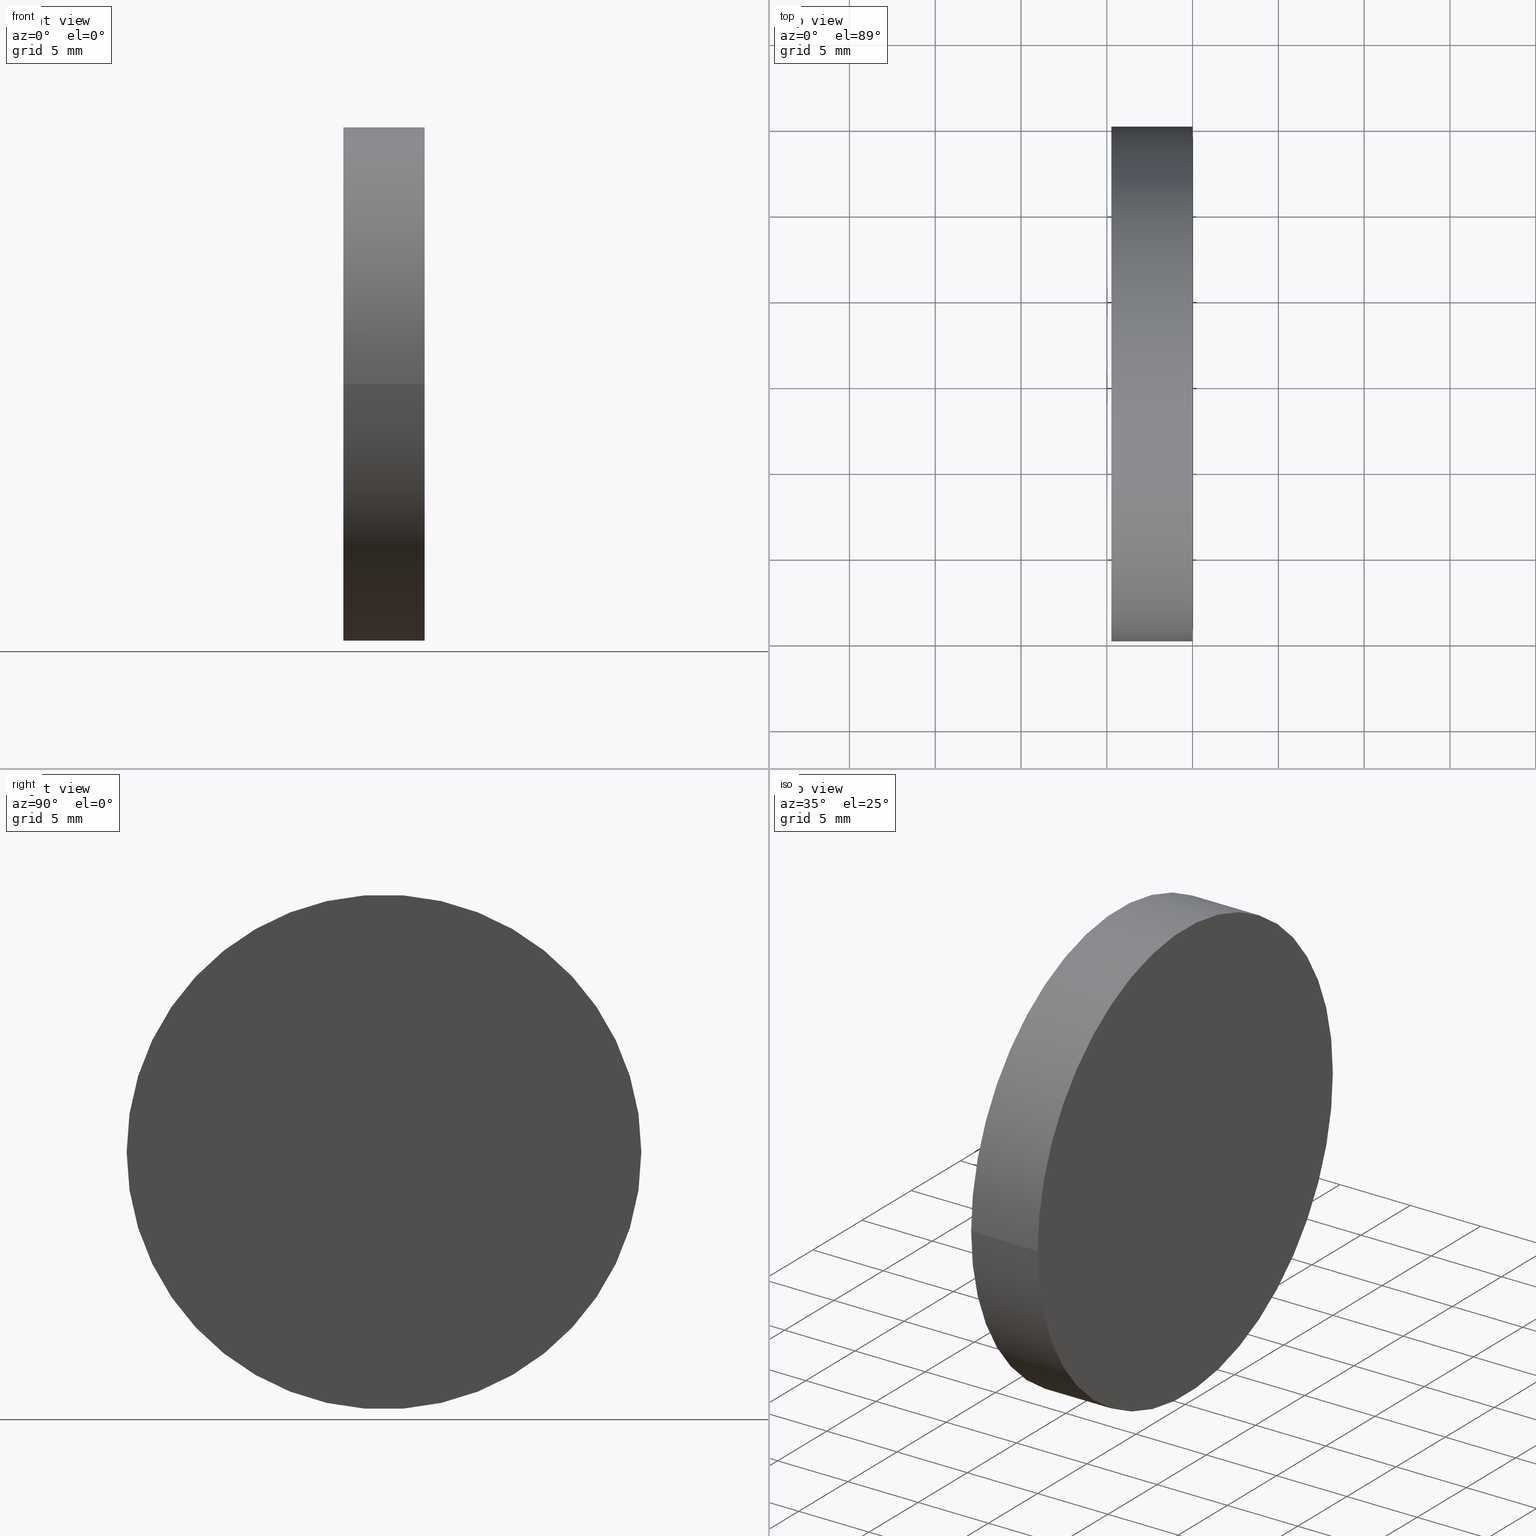
[diagram: canonical four-view strip — front | top / right | iso, engineering-drawing reading convention]
A machine part, canonical four-view strip (front | top / right | iso — engineering-drawing reading convention). The complete STEP part file that produces these views, byte-faithful:
ISO-10303-21;
HEADER;
FILE_DESCRIPTION (( 'STEP AP203' ),
    '1' );
FILE_NAME ('120356.STEP',
    '2024-05-10T06:45:50',
    ( '' ),
    ( '' ),
    'SwSTEP 2.0',
    'SolidWorks 2020',
    '' );
FILE_SCHEMA (( 'CONFIG_CONTROL_DESIGN' ));
ENDSEC;

DATA;
#1 = DIRECTION ( 'NONE',  ( -1.224646799147353207E-16, 1.000000000000000000, 0.000000000000000000 ) ) ;
#2 = APPROVAL_ROLE ( '' ) ;
#3 = TOROIDAL_SURFACE ( 'NONE', #62, -0.01138314681476834331, 51.63999999999999346 ) ;
#4 = COORDINATED_UNIVERSAL_TIME_OFFSET ( 8, 0, .AHEAD. ) ;
#5 = EDGE_CURVE ( 'NONE', #157, #108, #38, .T. ) ;
#6 = PERSON_AND_ORGANIZATION ( #48, #22 ) ;
#7 = APPLICATION_CONTEXT ( 'configuration controlled 3d designs of mechanical parts and assemblies' ) ;
#8 = VERTEX_POINT ( 'NONE', #63 ) ;
#9 = VERTEX_POINT ( 'NONE', #167 ) ;
#10 = LOCAL_TIME ( 14, 45, 50.00000000000000000, #101 ) ;
#11 = EDGE_CURVE ( 'NONE', #157, #9, #36, .T. ) ;
#12 = CARTESIAN_POINT ( 'NONE',  ( -4.729999999999999538, 15.00000000000000178, 0.000000000000000000 ) ) ;
#13 = CYLINDRICAL_SURFACE ( 'NONE', #94, 15.00000000000000000 ) ;
#14 = FACE_OUTER_BOUND ( 'NONE', #169, .T. ) ;
#15 = CC_DESIGN_APPROVAL ( #27, ( #166 ) ) ;
#16 = COORDINATED_UNIVERSAL_TIME_OFFSET ( 8, 0, .AHEAD. ) ;
#17 =( LENGTH_UNIT ( ) NAMED_UNIT ( * ) SI_UNIT ( .MILLI., .METRE. ) );
#18 = APPLICATION_PROTOCOL_DEFINITION ( 'international standard', 'config_control_design', 1994, #7 ) ;
#19 = DIRECTION ( 'NONE',  ( -1.224646799147353207E-16, 1.000000000000000000, 0.000000000000000000 ) ) ;
#20 = SHAPE_DEFINITION_REPRESENTATION ( #118, #119 ) ;
#21 = PERSON_AND_ORGANIZATION ( #48, #22 ) ;
#22 = ORGANIZATION ( 'δָ��', 'δָ��', '' ) ;
#23 = APPROVAL_DATE_TIME ( #103, #27 ) ;
#24 = EDGE_CURVE ( 'NONE', #108, #8, #43, .T. ) ;
#25 = VECTOR ( 'NONE', #41, 1000.000000000000000 ) ;
#26 = LINE ( 'NONE', #59, #130 ) ;
#27 = APPROVAL ( #37, 'δָ��' ) ;
#28 = DIRECTION ( 'NONE',  ( -1.156482317317871478E-16, 1.000000000000000000, 0.000000000000000000 ) ) ;
#29 = CARTESIAN_POINT ( 'NONE',  ( 0.000000000000000000, 0.000000000000000000, 0.000000000000000000 ) ) ;
#30 = ORIENTED_EDGE ( 'NONE', *, *, #5, .F. ) ;
#31 = CIRCLE ( 'NONE', #175, 15.00000000000000000 ) ;
#32 = APPROVAL_STATUS ( 'not_yet_approved' ) ;
#33 = CARTESIAN_POINT ( 'NONE',  ( 2.763896918518806728E-15, -15.00000000000000000, 1.836970198721029589E-15 ) ) ;
#34 = CC_DESIGN_DATE_AND_TIME_ASSIGNMENT ( #46, #82, ( #156 ) ) ;
#35 = DIRECTION ( 'NONE',  ( -1.224646799147353207E-16, 1.000000000000000000, 0.000000000000000000 ) ) ;
#36 = CIRCLE ( 'NONE', #70, 51.63999999999999346 ) ;
#37 = APPROVAL_STATUS ( 'not_yet_approved' ) ;
#38 = CIRCLE ( 'NONE', #149, 15.00000000000000000 ) ;
#39 = ORIENTED_EDGE ( 'NONE', *, *, #11, .F. ) ;
#40 = EDGE_CURVE ( 'NONE', #108, #157, #181, .T. ) ;
#41 = DIRECTION ( 'NONE',  ( 1.000000000000000000, 1.224646799147353454E-16, -0.000000000000000000 ) ) ;
#42 = CARTESIAN_POINT ( 'NONE',  ( -4.729999999999999538, -5.792579359966981895E-16, 0.000000000000000000 ) ) ;
#43 = LINE ( 'NONE', #91, #25 ) ;
#44 = EDGE_CURVE ( 'NONE', #157, #195, #26, .T. ) ;
#45 = DIRECTION ( 'NONE',  ( -1.224646799147353454E-16, 1.000000000000000000, 0.000000000000000000 ) ) ;
#46 = DATE_AND_TIME ( #201, #153 ) ;
#47 = AXIS2_PLACEMENT_3D ( 'NONE', #133, #57, #121 ) ;
#48 = PERSON ( 'δָ��', 'δָ��', 'δָ��', ('δָ��'), ('δָ��'), ('δָ��') ) ;
#49 = APPROVAL_ROLE ( '' ) ;
#50 = CARTESIAN_POINT ( 'NONE',  ( 0.000000000000000000, 0.000000000000000000, 0.000000000000000000 ) ) ;
#51 = APPROVAL_PERSON_ORGANIZATION ( #125, #83, #49 ) ;
#52 = APPROVAL_DATE_TIME ( #160, #143 ) ;
#53 = MANIFOLD_SOLID_BREP ( '��ת1', #180 ) ;
#54 = UNCERTAINTY_MEASURE_WITH_UNIT (LENGTH_MEASURE( 1.000000000000000082E-05 ), #17, 'distance_accuracy_value', 'NONE');
#55 = CALENDAR_DATE ( 2024, 10, 5 ) ;
#56 = CALENDAR_DATE ( 2024, 10, 5 ) ;
#57 = DIRECTION ( 'NONE',  ( 1.000000000000000000, 1.224646799147353454E-16, -0.000000000000000000 ) ) ;
#58 = AXIS2_PLACEMENT_3D ( 'NONE', #188, #127, #35 ) ;
#59 = CARTESIAN_POINT ( 'NONE',  ( 1.836970198721029983E-15, -15.00000000000000000, 1.836970198721029589E-15 ) ) ;
#60 = DIRECTION ( 'NONE',  ( -1.000000000000000000, 0.000000000000000000, 0.000000000000000000 ) ) ;
#61 = CARTESIAN_POINT ( 'NONE',  ( -54.13999874539084090, 0.01138314681476171146, -1.394033431093043911E-18 ) ) ;
#62 = AXIS2_PLACEMENT_3D ( 'NONE', #95, #176, #45 ) ;
#63 = CARTESIAN_POINT ( 'NONE',  ( -9.100434789232534355E-16, 15.00000000000000000, 0.000000000000000000 ) ) ;
#64 = PERSON_AND_ORGANIZATION_ROLE ( 'design_owner' ) ;
#65 = CARTESIAN_POINT ( 'NONE',  ( 0.000000000000000000, 0.000000000000000000, 0.000000000000000000 ) ) ;
#66 = CC_DESIGN_PERSON_AND_ORGANIZATION_ASSIGNMENT ( #81, #64, ( #164 ) ) ;
#67 =( GEOMETRIC_REPRESENTATION_CONTEXT ( 3 ) GLOBAL_UNCERTAINTY_ASSIGNED_CONTEXT ( ( #54 ) ) GLOBAL_UNIT_ASSIGNED_CONTEXT ( ( #17, #80, #189 ) ) REPRESENTATION_CONTEXT ( 'NONE', 'WORKASPACE' ) );
#68 = DIRECTION ( 'NONE',  ( -1.224646799147353454E-16, 1.000000000000000000, 0.000000000000000000 ) ) ;
#69 = APPROVAL_ROLE ( '' ) ;
#70 = AXIS2_PLACEMENT_3D ( 'NONE', #61, #197, #194 ) ;
#71 = PERSON_AND_ORGANIZATION ( #48, #22 ) ;
#72 = CIRCLE ( 'NONE', #58, 15.00000000000000000 ) ;
#73 = AXIS2_PLACEMENT_3D ( 'NONE', #74, #137, #60 ) ;
#74 = CARTESIAN_POINT ( 'NONE',  ( -54.13999874539084090, -0.01138314681477497342, 0.000000000000000000 ) ) ;
#75 = EDGE_LOOP ( 'NONE', ( #39, #182, #138 ) ) ;
#76 = DIRECTION ( 'NONE',  ( -1.156482317317871478E-16, 1.000000000000000000, 0.000000000000000000 ) ) ;
#77 = APPROVAL_PERSON_ORGANIZATION ( #71, #27, #69 ) ;
#78 = DATE_AND_TIME ( #113, #187 ) ;
#79 = EDGE_CURVE ( 'NONE', #108, #9, #115, .T. ) ;
#80 =( NAMED_UNIT ( * ) PLANE_ANGLE_UNIT ( ) SI_UNIT ( $, .RADIAN. ) );
#81 = PERSON_AND_ORGANIZATION ( #48, #22 ) ;
#82 = DATE_TIME_ROLE ( 'creation_date' ) ;
#83 = APPROVAL ( #144, 'δָ��' ) ;
#84 = PERSON_AND_ORGANIZATION ( #48, #22 ) ;
#85 = LOCAL_TIME ( 14, 45, 50.00000000000000000, #4 ) ;
#86 = DESIGN_CONTEXT ( 'detailed design', #7, 'design' ) ;
#87 = AXIS2_PLACEMENT_3D ( 'NONE', #65, #96, #124 ) ;
#88 = ORIENTED_EDGE ( 'NONE', *, *, #24, .F. ) ;
#89 = ORIENTED_EDGE ( 'NONE', *, *, #179, .T. ) ;
#90 = CC_DESIGN_APPROVAL ( #143, ( #162 ) ) ;
#91 = CARTESIAN_POINT ( 'NONE',  ( -1.836970198721029983E-15, 15.00000000000000000, 0.000000000000000000 ) ) ;
#92 = CC_DESIGN_PERSON_AND_ORGANIZATION_ASSIGNMENT ( #6, #161, ( #162 ) ) ;
#93 = EDGE_LOOP ( 'NONE', ( #30, #152, #172 ) ) ;
#94 = AXIS2_PLACEMENT_3D ( 'NONE', #29, #139, #200 ) ;
#95 = CARTESIAN_POINT ( 'NONE',  ( -54.13999874539084090, -6.630573911106663054E-15, 0.000000000000000000 ) ) ;
#96 = DIRECTION ( 'NONE',  ( 0.000000000000000000, 0.000000000000000000, 1.000000000000000000 ) ) ;
#97 = MECHANICAL_CONTEXT ( 'NONE', #170, 'mechanical' ) ;
#98 = AXIS2_PLACEMENT_3D ( 'NONE', #171, #155, #28 ) ;
#99 = ADVANCED_FACE ( 'NONE', ( #107 ), #136, .F. ) ;
#100 = APPLICATION_PROTOCOL_DEFINITION ( 'international standard', 'config_control_design', 1994, #170 ) ;
#101 = COORDINATED_UNIVERSAL_TIME_OFFSET ( 8, 0, .AHEAD. ) ;
#102 = CC_DESIGN_PERSON_AND_ORGANIZATION_ASSIGNMENT ( #84, #146, ( #166 ) ) ;
#103 = DATE_AND_TIME ( #56, #105 ) ;
#104 = APPROVAL_PERSON_ORGANIZATION ( #173, #143, #2 ) ;
#105 = LOCAL_TIME ( 14, 45, 50.00000000000000000, #129 ) ;
#106 = EDGE_LOOP ( 'NONE', ( #199, #120, #134, #88 ) ) ;
#107 = FACE_OUTER_BOUND ( 'NONE', #93, .T. ) ;
#108 = VERTEX_POINT ( 'NONE', #12 ) ;
#109 = ORIENTED_EDGE ( 'NONE', *, *, #24, .T. ) ;
#110 = FACE_OUTER_BOUND ( 'NONE', #183, .T. ) ;
#111 = AXIS2_PLACEMENT_3D ( 'NONE', #140, #185, #68 ) ;
#112 = DIRECTION ( 'NONE',  ( 1.000000000000000000, 1.224646799147353454E-16, -0.000000000000000000 ) ) ;
#113 = CALENDAR_DATE ( 2024, 10, 5 ) ;
#114 = FACE_OUTER_BOUND ( 'NONE', #75, .T. ) ;
#115 = CIRCLE ( 'NONE', #73, 51.63999999999999346 ) ;
#116 = DATE_TIME_ROLE ( 'classification_date' ) ;
#117 = ADVANCED_FACE ( 'NONE', ( #122 ), #13, .T. ) ;
#118 = PRODUCT_DEFINITION_SHAPE ( 'NONE', 'NONE',  #156 ) ;
#119 = ADVANCED_BREP_SHAPE_REPRESENTATION ( '120356', ( #53, #87 ), #67 ) ;
#120 = ORIENTED_EDGE ( 'NONE', *, *, #44, .T. ) ;
#121 = DIRECTION ( 'NONE',  ( -1.224646799147353454E-16, 1.000000000000000000, 0.000000000000000000 ) ) ;
#122 = FACE_OUTER_BOUND ( 'NONE', #106, .T. ) ;
#123 = DIRECTION ( 'NONE',  ( 1.000000000000000000, 1.224646799147353454E-16, -0.000000000000000000 ) ) ;
#124 = DIRECTION ( 'NONE',  ( 1.000000000000000000, 0.000000000000000000, 0.000000000000000000 ) ) ;
#125 = PERSON_AND_ORGANIZATION ( #48, #22 ) ;
#126 = CARTESIAN_POINT ( 'NONE',  ( 9.269267197977765478E-16, 1.135157840444502874E-31, 0.000000000000000000 ) ) ;
#127 = DIRECTION ( 'NONE',  ( 1.000000000000000000, 1.224646799147353454E-16, -0.000000000000000000 ) ) ;
#128 = DIRECTION ( 'NONE',  ( 1.000000000000000000, 1.224646799147353454E-16, -0.000000000000000000 ) ) ;
#129 = COORDINATED_UNIVERSAL_TIME_OFFSET ( 8, 0, .AHEAD. ) ;
#130 = VECTOR ( 'NONE', #123, 1000.000000000000000 ) ;
#131 = CALENDAR_DATE ( 2024, 10, 5 ) ;
#132 = ADVANCED_FACE ( 'NONE', ( #14 ), #158, .T. ) ;
#133 = CARTESIAN_POINT ( 'NONE',  ( -54.13999874539084090, -6.630573911106663054E-15, 0.000000000000000000 ) ) ;
#134 = ORIENTED_EDGE ( 'NONE', *, *, #163, .F. ) ;
#135 = ADVANCED_FACE ( 'NONE', ( #114 ), #3, .F. ) ;
#136 = TOROIDAL_SURFACE ( 'NONE', #47, -0.01138314681476834331, 51.63999999999999346 ) ;
#137 = DIRECTION ( 'NONE',  ( -0.000000000000000000, 0.000000000000000000, -1.000000000000000000 ) ) ;
#138 = ORIENTED_EDGE ( 'NONE', *, *, #79, .T. ) ;
#139 = DIRECTION ( 'NONE',  ( 1.000000000000000000, 1.224646799147353454E-16, -0.000000000000000000 ) ) ;
#140 = CARTESIAN_POINT ( 'NONE',  ( -1.373506838822141611E-15, 15.00000000000000000, 0.000000000000000000 ) ) ;
#141 = PERSON_AND_ORGANIZATION ( #48, #22 ) ;
#142 = PLANE ( 'NONE',  #111 ) ;
#143 = APPROVAL ( #32, 'δָ��' ) ;
#144 = APPROVAL_STATUS ( 'not_yet_approved' ) ;
#145 = CARTESIAN_POINT ( 'NONE',  ( -4.729999999999997762, -15.00000000000000178, 1.836970198721029983E-15 ) ) ;
#146 = PERSON_AND_ORGANIZATION_ROLE ( 'classification_officer' ) ;
#147 = AXIS2_PLACEMENT_3D ( 'NONE', #50, #112, #1 ) ;
#148 = CC_DESIGN_DATE_AND_TIME_ASSIGNMENT ( #178, #116, ( #166 ) ) ;
#149 = AXIS2_PLACEMENT_3D ( 'NONE', #42, #184, #76 ) ;
#150 = CC_DESIGN_PERSON_AND_ORGANIZATION_ASSIGNMENT ( #141, #186, ( #156 ) ) ;
#151 = ORIENTED_EDGE ( 'NONE', *, *, #5, .T. ) ;
#152 = ORIENTED_EDGE ( 'NONE', *, *, #11, .T. ) ;
#153 = LOCAL_TIME ( 14, 45, 50.00000000000000000, #159 ) ;
#154 = ORIENTED_EDGE ( 'NONE', *, *, #179, .F. ) ;
#155 = DIRECTION ( 'NONE',  ( 1.000000000000000000, 1.224646799147353454E-16, -0.000000000000000000 ) ) ;
#156 = PRODUCT_DEFINITION ( 'δ֪', '', #162, #86 ) ;
#157 = VERTEX_POINT ( 'NONE', #145 ) ;
#158 = CYLINDRICAL_SURFACE ( 'NONE', #147, 15.00000000000000000 ) ;
#159 = COORDINATED_UNIVERSAL_TIME_OFFSET ( 8, 0, .AHEAD. ) ;
#160 = DATE_AND_TIME ( #131, #10 ) ;
#161 = PERSON_AND_ORGANIZATION_ROLE ( 'creator' ) ;
#162 = PRODUCT_DEFINITION_FORMATION_WITH_SPECIFIED_SOURCE ( '�κ�', '', #164, .NOT_KNOWN. ) ;
#163 = EDGE_CURVE ( 'NONE', #8, #195, #31, .T. ) ;
#164 = PRODUCT ( '120356', '120356', '', ( #97 ) ) ;
#165 = ORIENTED_EDGE ( 'NONE', *, *, #163, .T. ) ;
#166 = SECURITY_CLASSIFICATION ( '', '', #193 ) ;
#167 = CARTESIAN_POINT ( 'NONE',  ( -2.500000000000000000, -3.061616997868383634E-16, 0.000000000000000000 ) ) ;
#168 = ORIENTED_EDGE ( 'NONE', *, *, #44, .F. ) ;
#169 = EDGE_LOOP ( 'NONE', ( #168, #151, #109, #154 ) ) ;
#170 = APPLICATION_CONTEXT ( 'configuration controlled 3d designs of mechanical parts and assemblies' ) ;
#171 = CARTESIAN_POINT ( 'NONE',  ( -4.729999999999999538, -5.792579359966981895E-16, 0.000000000000000000 ) ) ;
#172 = ORIENTED_EDGE ( 'NONE', *, *, #79, .F. ) ;
#173 = PERSON_AND_ORGANIZATION ( #48, #22 ) ;
#174 = APPROVAL_DATE_TIME ( #78, #83 ) ;
#175 = AXIS2_PLACEMENT_3D ( 'NONE', #126, #128, #19 ) ;
#176 = DIRECTION ( 'NONE',  ( 1.000000000000000000, 1.224646799147353454E-16, -0.000000000000000000 ) ) ;
#177 = ADVANCED_FACE ( 'NONE', ( #110 ), #142, .T. ) ;
#178 = DATE_AND_TIME ( #55, #85 ) ;
#179 = EDGE_CURVE ( 'NONE', #195, #8, #72, .T. ) ;
#180 = CLOSED_SHELL ( 'NONE', ( #117, #99, #135, #132, #177 ) ) ;
#181 = CIRCLE ( 'NONE', #98, 15.00000000000000000 ) ;
#182 = ORIENTED_EDGE ( 'NONE', *, *, #40, .F. ) ;
#183 = EDGE_LOOP ( 'NONE', ( #165, #89 ) ) ;
#184 = DIRECTION ( 'NONE',  ( 1.000000000000000000, 1.224646799147353454E-16, -0.000000000000000000 ) ) ;
#185 = DIRECTION ( 'NONE',  ( 1.000000000000000000, 1.224646799147353454E-16, -0.000000000000000000 ) ) ;
#186 = PERSON_AND_ORGANIZATION_ROLE ( 'creator' ) ;
#187 = LOCAL_TIME ( 14, 45, 50.00000000000000000, #16 ) ;
#188 = CARTESIAN_POINT ( 'NONE',  ( 9.269267197977765478E-16, 1.135157840444502874E-31, 0.000000000000000000 ) ) ;
#189 =( NAMED_UNIT ( * ) SI_UNIT ( $, .STERADIAN. ) SOLID_ANGLE_UNIT ( ) );
#190 = CC_DESIGN_PERSON_AND_ORGANIZATION_ASSIGNMENT ( #21, #192, ( #162 ) ) ;
#191 = CC_DESIGN_APPROVAL ( #83, ( #156 ) ) ;
#192 = PERSON_AND_ORGANIZATION_ROLE ( 'design_supplier' ) ;
#193 = SECURITY_CLASSIFICATION_LEVEL ( 'unclassified' ) ;
#194 = DIRECTION ( 'NONE',  ( 0.000000000000000000, -1.000000000000000000, 1.224646799147353207E-16 ) ) ;
#195 = VERTEX_POINT ( 'NONE', #33 ) ;
#196 = CC_DESIGN_SECURITY_CLASSIFICATION ( #166, ( #162 ) ) ;
#197 = DIRECTION ( 'NONE',  ( -1.499759782661857882E-32, 1.224646799147353207E-16, 1.000000000000000000 ) ) ;
#198 = PRODUCT_RELATED_PRODUCT_CATEGORY ( 'detail', '', ( #164 ) ) ;
#199 = ORIENTED_EDGE ( 'NONE', *, *, #40, .T. ) ;
#200 = DIRECTION ( 'NONE',  ( -1.224646799147353207E-16, 1.000000000000000000, 0.000000000000000000 ) ) ;
#201 = CALENDAR_DATE ( 2024, 10, 5 ) ;
ENDSEC;
END-ISO-10303-21;
